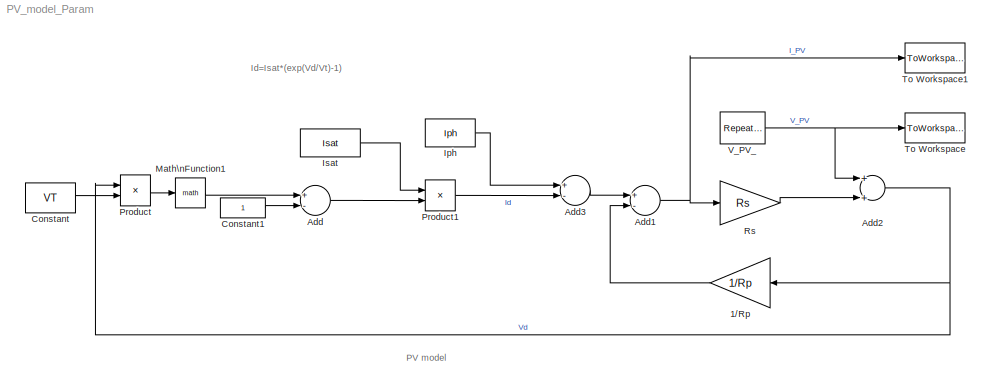
MODEL PV_model_Param
KIND model
BLOCK [Gain] 1//Rp
  Gain = 1/Rp
  OutDataTypeStr = Inherit: Inherit via internal rule
  ParamDataTypeStr = Inherit: Inherit via internal rule
  SID = 13
  SaturateOnIntegerOverflow = off
BLOCK [Sum] Add
  InputSameDT = off
  Inputs = +-
  OutDataTypeStr = Inherit: Inherit via internal rule
  Ports = [2, 1]
  SID = 3
  SaturateOnIntegerOverflow = off
BLOCK [Sum] Add1
  InputSameDT = off
  Inputs = +-
  OutDataTypeStr = Inherit: Inherit via internal rule
  Ports = [2, 1]
  SID = 12
  SaturateOnIntegerOverflow = off
BLOCK [Sum] Add2
  InputSameDT = off
  OutDataTypeStr = Inherit: Inherit via internal rule
  Ports = [2, 1]
  SID = 14
  SaturateOnIntegerOverflow = off
BLOCK [Sum] Add3
  InputSameDT = off
  Inputs = +-
  OutDataTypeStr = Inherit: Inherit via internal rule
  Ports = [2, 1]
  SID = 16
  SaturateOnIntegerOverflow = off
BLOCK [Constant] Constant
  SID = 1
  Value = VT
BLOCK [Constant] Constant1
  SID = 8
BLOCK [Constant] Iph
  SID = 17
  Value = Iph
BLOCK [Constant] Isat
  SID = 10
  Value = Isat
BLOCK [Math] Math\nFunction1
  Ports = [1, 1]
  SID = 39
BLOCK [Product] Product
  InputSameDT = off
  Inputs = */
  OutDataTypeStr = Inherit: Inherit via internal rule
  Ports = [2, 1]
  SID = 7
  SaturateOnIntegerOverflow = off
BLOCK [Product] Product1
  InputSameDT = off
  Inputs = **
  OutDataTypeStr = Inherit: Inherit via internal rule
  Ports = [2, 1]
  SID = 9
  SaturateOnIntegerOverflow = off
BLOCK [Gain] Rs
  Gain = Rs
  OutDataTypeStr = Inherit: Inherit via internal rule
  ParamDataTypeStr = Inherit: Inherit via internal rule
  SID = 15
  SaturateOnIntegerOverflow = off
BLOCK [ToWorkspace] To Workspace
  MaxDataPoints = inf
  Ports = [1]
  SID = 33
  SampleTime = -1
  VariableName = V_PV
BLOCK [ToWorkspace] To Workspace1
  MaxDataPoints = inf
  Ports = [1]
  SID = 34
  SampleTime = -1
  VariableName = I_PV
BLOCK [Reference] V_PV_  REF=simulink/Sources/Repeating\nSequence
  Ports = [0, 1]
  SID = 20
  SourceBlock = simulink/Sources/Repeating\nSequence
  SourceProductBaseCode = SL
  SourceProductName = Simulink
  SourceType = Repeating table
  rep_seq_t = [0 0.1 0.2]
  rep_seq_y = [0 Voc 0]
ANNOTATION (root): Id=Isat*(exp(Vd/Vt)-1)
ANNOTATION (root): PV model
LINE 1//Rp:1 -> Add1:2
NET Add1:1 -> Rs:1, To Workspace1:1
NET Add2:1 -> 1//Rp:1, Product:1
LINE Add3:1 -> Add1:1
LINE Add:1 -> Product1:2
LINE Constant1:1 -> Add:2
LINE Constant:1 -> Product:2
LINE Iph:1 -> Add3:1
LINE Isat:1 -> Product1:1
LINE Math\nFunction1:1 -> Add:1
LINE Product1:1 -> Add3:2
LINE Product:1 -> Math\nFunction1:1
LINE Rs:1 -> Add2:2
NET V_PV_:1 -> Add2:1, To Workspace:1
note: NET lines group one-source signal fan-out (src -> all destinations, sorted); 1:1 wires keep LINE
